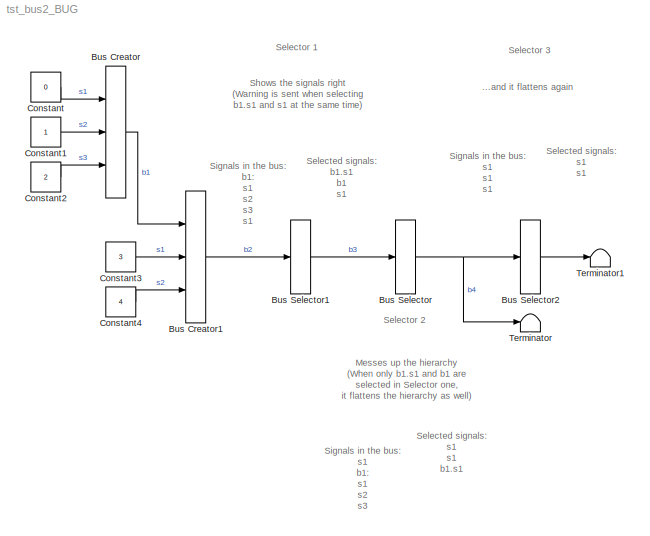
MODEL tst_bus2_BUG
KIND model
BLOCK [BusCreator] Bus Creator
  DisplayOption = bar
  Inputs = 3
  Ports = [3, 1]
  SID = 1
BLOCK [BusCreator] Bus Creator1
  DisplayOption = bar
  Inputs = 3
  Ports = [3, 1]
  SID = 13
BLOCK [BusSelector] Bus Selector
  OutputAsBus = on
  OutputSignals = s1,s1,b1.s1
  Ports = [1, 1]
  SID = 19
BLOCK [BusSelector] Bus Selector1
  OutputAsBus = on
  OutputSignals = b1.s1,b1,s1
  Ports = [1, 1]
  SID = 12
BLOCK [BusSelector] Bus Selector2
  OutputAsBus = on
  OutputSignals = s1,s1
  Ports = [1, 1]
  SID = 21
BLOCK [Constant] Constant
  SID = 3
  Value = 0
BLOCK [Constant] Constant1
  SID = 7
BLOCK [Constant] Constant2
  SID = 4
  Value = 2
BLOCK [Constant] Constant3
  SID = 14
  Value = 3
BLOCK [Constant] Constant4
  SID = 15
  Value = 4
BLOCK [Terminator] Terminator
  SID = 5
BLOCK [Terminator] Terminator1
  SID = 23
ANNOTATION (root): ...and it flattens again
ANNOTATION (root): Messes up the hierarchy\n(When only b1.s1 and b1 are \nselected in Selector one, \nit flattens the hierarchy as well)
ANNOTATION (root): Selected signals:\nb1.s1 \nb1 \ns1 \n\n
ANNOTATION (root): Selected signals:\ns1 \ns1 \nb1.s1
ANNOTATION (root): Selected signals:\ns1\ns1
ANNOTATION (root): Selector 1
ANNOTATION (root): Selector 2
ANNOTATION (root): Selector 3
ANNOTATION (root): Shows the signals right\n(Warning is sent when selecting \nb1.s1 and s1 at the same time)
ANNOTATION (root): Signals in the bus:\nb1:\n s1\n s2\n s3\ns1\ns2
ANNOTATION (root): Signals in the bus:\ns1\nb1:\n s1\n s2\n s3\ns1
ANNOTATION (root): Signals in the bus:\ns1\ns1\ns1
LINE Bus Creator1:1 -> Bus Selector1:1
LINE Bus Creator:1 -> Bus Creator1:1
LINE Bus Selector1:1 -> Bus Selector:1
LINE Bus Selector2:1 -> Terminator1:1
NET Bus Selector:1 -> Bus Selector2:1, Terminator:1
LINE Constant1:1 -> Bus Creator:2
LINE Constant2:1 -> Bus Creator:3
LINE Constant3:1 -> Bus Creator1:2
LINE Constant4:1 -> Bus Creator1:3
LINE Constant:1 -> Bus Creator:1
note: NET lines group one-source signal fan-out (src -> all destinations, sorted); 1:1 wires keep LINE
